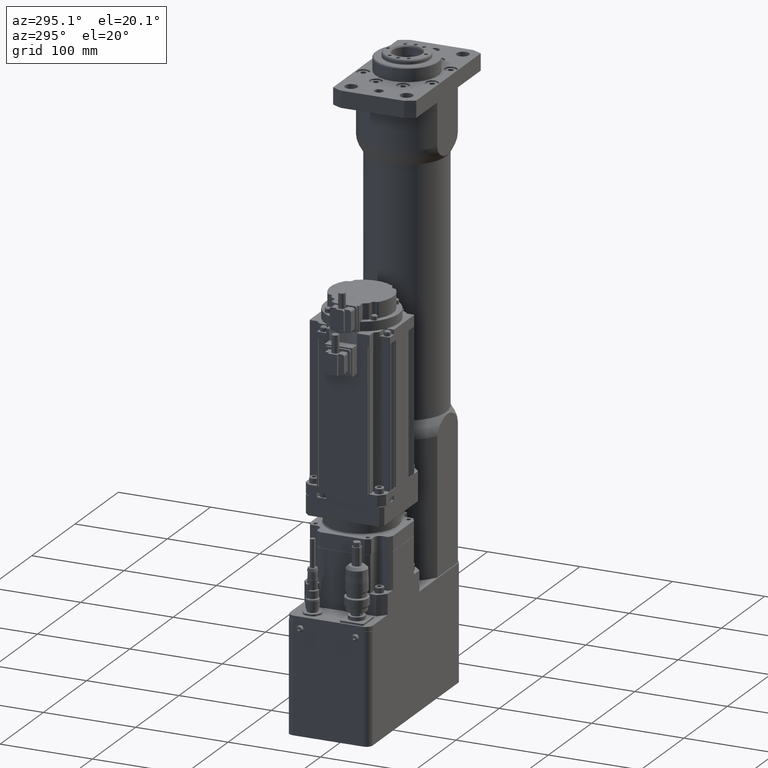
[diagram: clean part render]
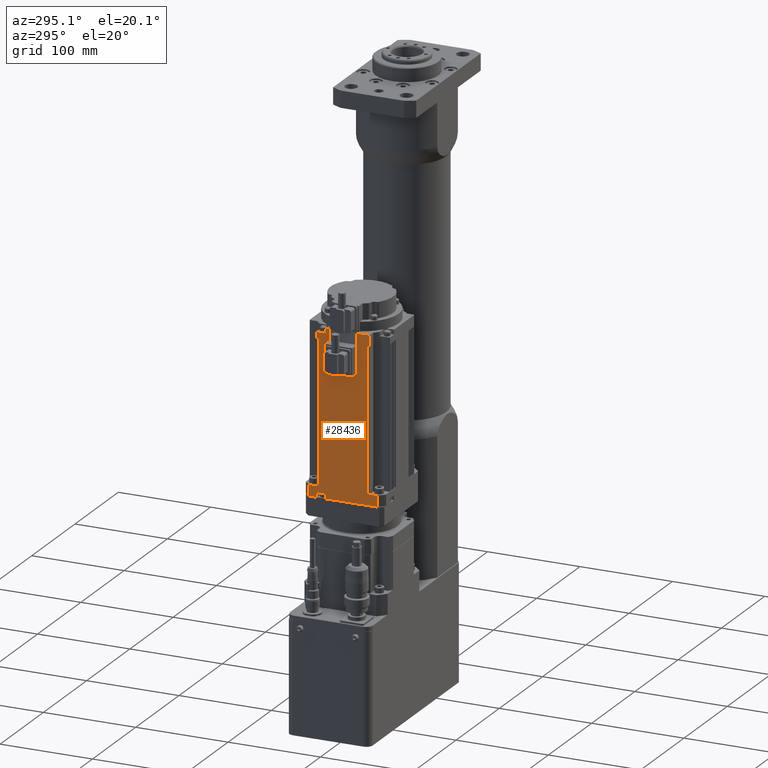
[diagram: same view with one face highlighted and labeled with its STEP entity id]
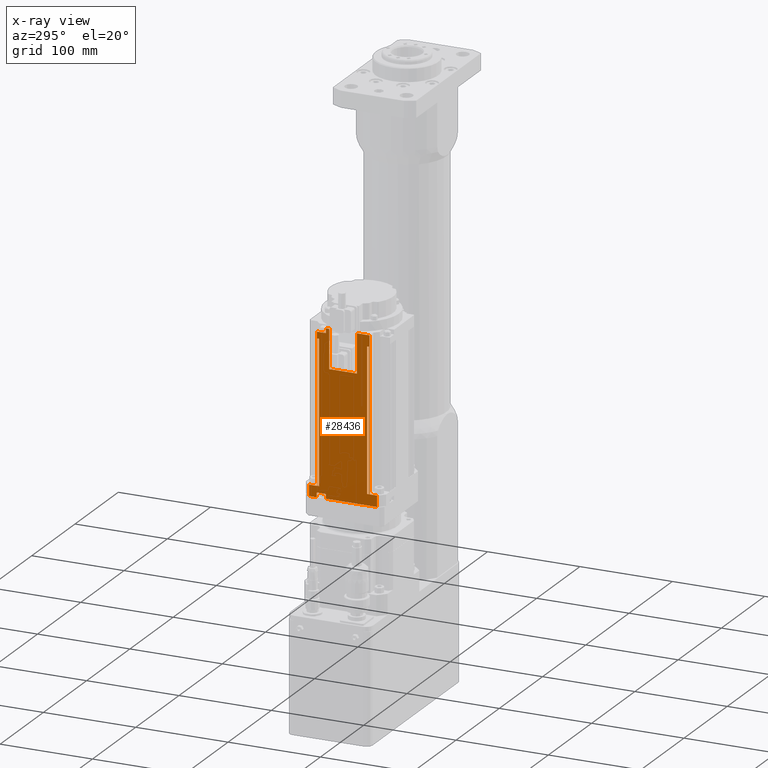
[diagram: x-ray of the same camera — body ghosted, the highlighted face saturated]
A machine part, auxiliary view. The second image highlights one B-rep face of the part: STEP entity #28436.
The next image is the same camera in x-ray: the body ghosted, the highlighted face saturated — about 0% of this face is hidden behind the body in this view.
In plain terms, the highlighted planar face has unit normal (-1, -0, 0).
Its self-contained STEP definition (entity closure, byte-faithful):
#2935=PLANE('',#31319);
#4295=LINE('',#46975,#6148);
#4298=LINE('',#46988,#6151);
#4321=LINE('',#47050,#6174);
#4323=LINE('',#47056,#6176);
#4326=LINE('',#47061,#6179);
#4616=LINE('',#47840,#6469);
#4620=LINE('',#47848,#6473);
#4628=LINE('',#47866,#6481);
#4632=LINE('',#47872,#6485);
#4633=LINE('',#47875,#6486);
#4635=LINE('',#47878,#6488);
#4636=LINE('',#47884,#6489);
#4639=LINE('',#47889,#6492);
#4653=LINE('',#47980,#6506);
#4654=LINE('',#47982,#6507);
#4655=LINE('',#47983,#6508);
#4656=LINE('',#47984,#6509);
#4657=LINE('',#47985,#6510);
#4658=LINE('',#47986,#6511);
#4659=LINE('',#47987,#6512);
#4660=LINE('',#47990,#6513);
#4661=LINE('',#47992,#6514);
#4662=LINE('',#47994,#6515);
#4663=LINE('',#47995,#6516);
#4664=LINE('',#47998,#6517);
#4665=LINE('',#48000,#6518);
#4666=LINE('',#48002,#6519);
#4667=LINE('',#48003,#6520);
#6148=VECTOR('',#37256,12.);
#6151=VECTOR('',#37269,12.);
#6174=VECTOR('',#37326,9.99999999999999);
#6176=VECTOR('',#37332,5.);
#6179=VECTOR('',#37337,5.);
#6469=VECTOR('',#38013,5.);
#6473=VECTOR('',#38019,161.);
#6481=VECTOR('',#38031,166.);
#6485=VECTOR('',#38037,12.);
#6486=VECTOR('',#38040,12.);
#6488=VECTOR('',#38044,9.99999999999999);
#6489=VECTOR('',#38051,3.5);
#6492=VECTOR('',#38056,13.5);
#6506=VECTOR('',#38158,30.);
#6507=VECTOR('',#38159,30.);
#6508=VECTOR('',#38160,30.);
#6509=VECTOR('',#38161,8.33408747342601);
#6510=VECTOR('',#38162,8.33408747342601);
#6511=VECTOR('',#38163,55.334087473426);
#6512=VECTOR('',#38164,8.33408747342599);
#6513=VECTOR('',#38165,2.00000000002192);
#6514=VECTOR('',#38166,154.);
#6515=VECTOR('',#38167,2.00000000000775);
#6516=VECTOR('',#38168,154.);
#6517=VECTOR('',#38169,2.00000000000775);
#6518=VECTOR('',#38170,154.);
#6519=VECTOR('',#38171,2.00000000002192);
#6520=VECTOR('',#38172,154.);
#7304=FACE_BOUND('',#11276,.T.);
#7305=FACE_BOUND('',#11277,.T.);
#9230=FACE_OUTER_BOUND('',#11275,.T.);
#11275=EDGE_LOOP('',(#24662,#24663,#24664,#24665,#24666,#24667,#24668,#24669,
#24670,#24671,#24672,#24673,#24674,#24675,#24676,#24677,#24678,#24679,#24680,
#24681));
#11276=EDGE_LOOP('',(#24682,#24683,#24684,#24685));
#11277=EDGE_LOOP('',(#24686,#24687,#24688,#24689));
#14927=VERTEX_POINT('',#46972);
#14928=VERTEX_POINT('',#46974);
#14930=VERTEX_POINT('',#46980);
#14933=VERTEX_POINT('',#46986);
#14953=VERTEX_POINT('',#47044);
#14955=VERTEX_POINT('',#47048);
#14957=VERTEX_POINT('',#47055);
#14958=VERTEX_POINT('',#47059);
#15253=VERTEX_POINT('',#47837);
#15254=VERTEX_POINT('',#47839);
#15256=VERTEX_POINT('',#47845);
#15257=VERTEX_POINT('',#47847);
#15258=VERTEX_POINT('',#47851);
#15263=VERTEX_POINT('',#47860);
#15264=VERTEX_POINT('',#47864);
#15265=VERTEX_POINT('',#47865);
#15266=VERTEX_POINT('',#47870);
#15267=VERTEX_POINT('',#47874);
#15303=VERTEX_POINT('',#47979);
#15304=VERTEX_POINT('',#47981);
#15305=VERTEX_POINT('',#47988);
#15306=VERTEX_POINT('',#47989);
#15307=VERTEX_POINT('',#47991);
#15308=VERTEX_POINT('',#47993);
#15309=VERTEX_POINT('',#47996);
#15310=VERTEX_POINT('',#47997);
#15311=VERTEX_POINT('',#47999);
#15312=VERTEX_POINT('',#48001);
#18175=EDGE_CURVE('',#14927,#14928,#4295,.T.);
#18182=EDGE_CURVE('',#14930,#14933,#4298,.T.);
#18213=EDGE_CURVE('',#14953,#14955,#4321,.T.);
#18216=EDGE_CURVE('',#14957,#14953,#4323,.T.);
#18219=EDGE_CURVE('',#14955,#14958,#4326,.T.);
#18608=EDGE_CURVE('',#15253,#15254,#4616,.T.);
#18612=EDGE_CURVE('',#15256,#15257,#4620,.T.);
#18620=EDGE_CURVE('',#15264,#15265,#4628,.T.);
#18624=EDGE_CURVE('',#15263,#15266,#4632,.T.);
#18625=EDGE_CURVE('',#15267,#15258,#4633,.T.);
#18627=EDGE_CURVE('',#15257,#15253,#4635,.T.);
#18630=EDGE_CURVE('',#15254,#15266,#4636,.T.);
#18633=EDGE_CURVE('',#15267,#15265,#4639,.T.);
#18680=EDGE_CURVE('',#15258,#15303,#4653,.T.);
#18681=EDGE_CURVE('',#15303,#15304,#4654,.T.);
#18682=EDGE_CURVE('',#15304,#15263,#4655,.T.);
#18683=EDGE_CURVE('',#14928,#15256,#4656,.T.);
#18684=EDGE_CURVE('',#14927,#14957,#4657,.T.);
#18685=EDGE_CURVE('',#14958,#14930,#4658,.T.);
#18686=EDGE_CURVE('',#15264,#14933,#4659,.T.);
#18687=EDGE_CURVE('',#15305,#15306,#4660,.T.);
#18688=EDGE_CURVE('',#15307,#15306,#4661,.T.);
#18689=EDGE_CURVE('',#15308,#15307,#4662,.T.);
#18690=EDGE_CURVE('',#15305,#15308,#4663,.T.);
#18691=EDGE_CURVE('',#15309,#15310,#4664,.T.);
#18692=EDGE_CURVE('',#15311,#15310,#4665,.T.);
#18693=EDGE_CURVE('',#15312,#15311,#4666,.T.);
#18694=EDGE_CURVE('',#15309,#15312,#4667,.T.);
#24662=ORIENTED_EDGE('',*,*,#18680,.T.);
#24663=ORIENTED_EDGE('',*,*,#18681,.T.);
#24664=ORIENTED_EDGE('',*,*,#18682,.T.);
#24665=ORIENTED_EDGE('',*,*,#18624,.T.);
#24666=ORIENTED_EDGE('',*,*,#18630,.F.);
#24667=ORIENTED_EDGE('',*,*,#18608,.F.);
#24668=ORIENTED_EDGE('',*,*,#18627,.F.);
#24669=ORIENTED_EDGE('',*,*,#18612,.F.);
#24670=ORIENTED_EDGE('',*,*,#18683,.F.);
#24671=ORIENTED_EDGE('',*,*,#18175,.F.);
#24672=ORIENTED_EDGE('',*,*,#18684,.T.);
#24673=ORIENTED_EDGE('',*,*,#18216,.T.);
#24674=ORIENTED_EDGE('',*,*,#18213,.T.);
#24675=ORIENTED_EDGE('',*,*,#18219,.T.);
#24676=ORIENTED_EDGE('',*,*,#18685,.T.);
#24677=ORIENTED_EDGE('',*,*,#18182,.T.);
#24678=ORIENTED_EDGE('',*,*,#18686,.F.);
#24679=ORIENTED_EDGE('',*,*,#18620,.T.);
#24680=ORIENTED_EDGE('',*,*,#18633,.F.);
#24681=ORIENTED_EDGE('',*,*,#18625,.T.);
#24682=ORIENTED_EDGE('',*,*,#18687,.T.);
#24683=ORIENTED_EDGE('',*,*,#18688,.F.);
#24684=ORIENTED_EDGE('',*,*,#18689,.F.);
#24685=ORIENTED_EDGE('',*,*,#18690,.F.);
#24686=ORIENTED_EDGE('',*,*,#18691,.T.);
#24687=ORIENTED_EDGE('',*,*,#18692,.F.);
#24688=ORIENTED_EDGE('',*,*,#18693,.F.);
#24689=ORIENTED_EDGE('',*,*,#18694,.F.);
#28436=ADVANCED_FACE('',(#9230,#7304,#7305),#2935,.T.);
#31319=AXIS2_PLACEMENT_3D('',#47978,#38156,#38157);
#37256=DIRECTION('',(9.30439962930108E-17,-3.48167009810821E-18,1.));
#37269=DIRECTION('',(9.30439962930108E-17,-3.48167009810821E-18,1.));
#37326=DIRECTION('',(5.30652202546146E-15,-1.,-3.4816700981087E-18));
#37332=DIRECTION('',(9.30439962930108E-17,-3.48167009810821E-18,1.));
#37337=DIRECTION('',(-9.30439962930108E-17,3.48167009810821E-18,-1.));
#38013=DIRECTION('',(9.30439962930108E-17,-3.48167009810821E-18,1.));
#38019=DIRECTION('',(9.30439962930108E-17,-3.48167009810821E-18,1.));
#38031=DIRECTION('',(9.30439962930108E-17,-3.48167009810821E-18,1.));
#38037=DIRECTION('',(9.30439962930108E-17,-3.48167009810821E-18,1.));
#38040=DIRECTION('',(-9.30439962930108E-17,3.48167009810821E-18,-1.));
#38044=DIRECTION('',(5.95357096955264E-15,-1.,-3.48167009810876E-18));
#38051=DIRECTION('',(-9.9127055767722E-18,-1.,-3.4816700981082E-18));
#38056=DIRECTION('',(5.65751149631927E-15,-1.,-3.48167009810873E-18));
#38156=DIRECTION('center_axis',(-1.,-5.30652202546146E-15,9.30439962930108E-17));
#38157=DIRECTION('ref_axis',(5.6843418860808E-15,-1.,0.));
#38158=DIRECTION('',(-9.30439962930108E-17,3.48167009810838E-18,-1.));
#38159=DIRECTION('',(-5.30652202546146E-15,1.,3.48167009810888E-18));
#38160=DIRECTION('',(9.30439962930108E-17,-3.48167009810838E-18,1.));
#38161=DIRECTION('',(5.30652202546146E-15,-1.,-3.4816700981087E-18));
#38162=DIRECTION('',(5.30652202546146E-15,-1.,-3.4816700981087E-18));
#38163=DIRECTION('',(5.30652202546146E-15,-1.,-3.4816700981087E-18));
#38164=DIRECTION('',(5.30652202546146E-15,-1.,-3.4816700981087E-18));
#38165=DIRECTION('',(-5.30652202546146E-15,1.,3.48167009810888E-18));
#38166=DIRECTION('',(-9.30439962932438E-17,4.3914965066149E-14,-1.));
#38167=DIRECTION('',(-5.30652202546146E-15,1.,3.48167009810888E-18));
#38168=DIRECTION('',(9.30439962927554E-17,4.81109888906051E-14,1.));
#38169=DIRECTION('',(5.30652202546146E-15,-1.,-3.48167009810888E-18));
#38170=DIRECTION('',(9.30439962927763E-17,4.41747436214796E-14,1.));
#38171=DIRECTION('',(5.30652202546146E-15,-1.,-3.48167009810888E-18));
#38172=DIRECTION('',(-9.30439962932648E-17,4.78728380565334E-14,-1.));
#46972=CARTESIAN_POINT('',(-147.5,36.8340874734258,103.5));
#46974=CARTESIAN_POINT('',(-147.5,36.8340874734258,115.5));
#46975=CARTESIAN_POINT('',(-147.5,36.8340874734258,103.5));
#46980=CARTESIAN_POINT('',(-147.5,-36.8340874734262,103.5));
#46986=CARTESIAN_POINT('',(-147.5,-36.8340874734262,115.5));
#46988=CARTESIAN_POINT('',(-147.5,-36.8340874734262,103.5));
#47044=CARTESIAN_POINT('',(-147.5,28.4999999999998,108.5));
#47048=CARTESIAN_POINT('',(-147.5,18.4999999999998,108.5));
#47050=CARTESIAN_POINT('',(-147.5,30.1670437367128,108.5));
#47055=CARTESIAN_POINT('',(-147.5,28.4999999999998,103.5));
#47056=CARTESIAN_POINT('',(-147.5,28.4999999999998,103.5));
#47059=CARTESIAN_POINT('',(-147.5,18.4999999999998,103.5));
#47061=CARTESIAN_POINT('',(-147.5,18.4999999999998,103.5));
#47837=CARTESIAN_POINT('',(-147.5,18.4999999999998,276.5));
#47839=CARTESIAN_POINT('',(-147.5,18.4999999999998,281.5));
#47840=CARTESIAN_POINT('',(-147.5,18.4999999999998,269.5));
#47845=CARTESIAN_POINT('',(-147.5,28.4999999999998,115.5));
#47847=CARTESIAN_POINT('',(-147.5,28.4999999999998,276.5));
#47848=CARTESIAN_POINT('',(-147.5,28.4999999999998,269.5));
#47851=CARTESIAN_POINT('',(-147.5,-15.0000000000002,269.5));
#47860=CARTESIAN_POINT('',(-147.5,14.9999999999998,269.5));
#47864=CARTESIAN_POINT('',(-147.5,-28.5000000000002,115.5));
#47865=CARTESIAN_POINT('',(-147.5,-28.5000000000002,281.5));
#47866=CARTESIAN_POINT('',(-147.5,-28.5000000000002,115.5));
#47870=CARTESIAN_POINT('',(-147.5,14.9999999999998,281.5));
#47872=CARTESIAN_POINT('',(-147.5,14.9999999999998,269.5));
#47874=CARTESIAN_POINT('',(-147.5,-15.0000000000002,281.5));
#47875=CARTESIAN_POINT('',(-147.5,-15.0000000000002,269.5));
#47878=CARTESIAN_POINT('',(-147.5,28.4999999999998,276.5));
#47884=CARTESIAN_POINT('',(-147.5,18.4999999999998,281.5));
#47889=CARTESIAN_POINT('',(-147.5,14.9999999999998,281.5));
#47978=CARTESIAN_POINT('Origin',(-147.5,36.8340874734258,103.5));
#47979=CARTESIAN_POINT('',(-147.5,-15.0000000000002,239.5));
#47980=CARTESIAN_POINT('',(-147.5,-15.0000000000002,171.5));
#47981=CARTESIAN_POINT('',(-147.5,14.9999999999998,239.5));
#47982=CARTESIAN_POINT('',(-147.5,25.9170437367128,239.5));
#47983=CARTESIAN_POINT('',(-147.5,14.9999999999998,186.5));
#47984=CARTESIAN_POINT('',(-147.5,36.8340874734258,115.5));
#47985=CARTESIAN_POINT('',(-147.5,36.8340874734258,103.5));
#47986=CARTESIAN_POINT('',(-147.5,36.8340874734258,103.5));
#47987=CARTESIAN_POINT('',(-147.5,36.8340874734258,115.5));
#47988=CARTESIAN_POINT('',(-147.5,25.9999999999915,115.5));
#47989=CARTESIAN_POINT('',(-147.5,28.0000000000134,115.5));
#47990=CARTESIAN_POINT('',(-147.5,31.6670437367086,115.5));
#47991=CARTESIAN_POINT('',(-147.5,28.0000000000067,269.5));
#47992=CARTESIAN_POINT('',(-147.5,28.0000000000137,109.5));
#47993=CARTESIAN_POINT('',(-147.5,25.9999999999989,269.5));
#47994=CARTESIAN_POINT('',(-147.5,32.1670437367162,269.5));
#47995=CARTESIAN_POINT('',(-147.5,25.9999999999949,186.5));
#47996=CARTESIAN_POINT('',(-147.5,-25.9999999999993,269.5));
#47997=CARTESIAN_POINT('',(-147.5,-28.0000000000071,269.5));
#47998=CARTESIAN_POINT('',(-147.5,5.16704373671323,269.5));
#47999=CARTESIAN_POINT('',(-147.5,-28.0000000000139,115.5));
#48000=CARTESIAN_POINT('',(-147.5,-28.0000000000107,186.500000000001));
#48001=CARTESIAN_POINT('',(-147.5,-25.999999999992,115.5));
#48002=CARTESIAN_POINT('',(-147.5,4.66704373670595,115.5));
#48003=CARTESIAN_POINT('',(-147.5,-25.9999999999917,109.499999999998));